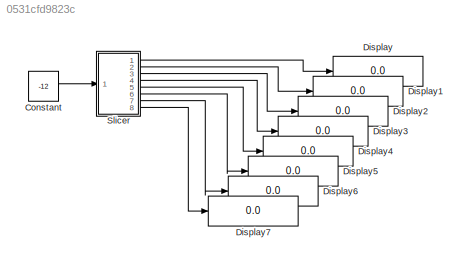
MODEL slx_0531cfd9823c
KIND model
CONFIG AbsTol = auto
CONFIG FixedStep = auto
CONFIG MaxStep = auto
CONFIG MinStep = auto
CONFIG RelTol = 1e-3
CONFIG SampleTimeConstraint = Unconstrained
CONFIG Solver = VariableStepAuto
CONFIG SolverMode = Auto
CONFIG SolverName = VariableStepAuto
CONFIG StartTime = 0.0
CONFIG StopTime = 10.0
BLOCK [Constant] Constant
  OutDataTypeStr = int8
  Value = -12
BLOCK [Display] Display
  Decimation = 1
  Ports = [1]
BLOCK [Display] Display1
  Decimation = 1
  Ports = [1]
BLOCK [Display] Display2
  Decimation = 1
  Ports = [1]
BLOCK [Display] Display3
  Decimation = 1
  Ports = [1]
BLOCK [Display] Display4
  Decimation = 1
  Ports = [1]
BLOCK [Display] Display5
  Decimation = 1
  Ports = [1]
BLOCK [Display] Display6
  Decimation = 1
  Ports = [1]
BLOCK [Display] Display7
  Decimation = 1
  Ports = [1]
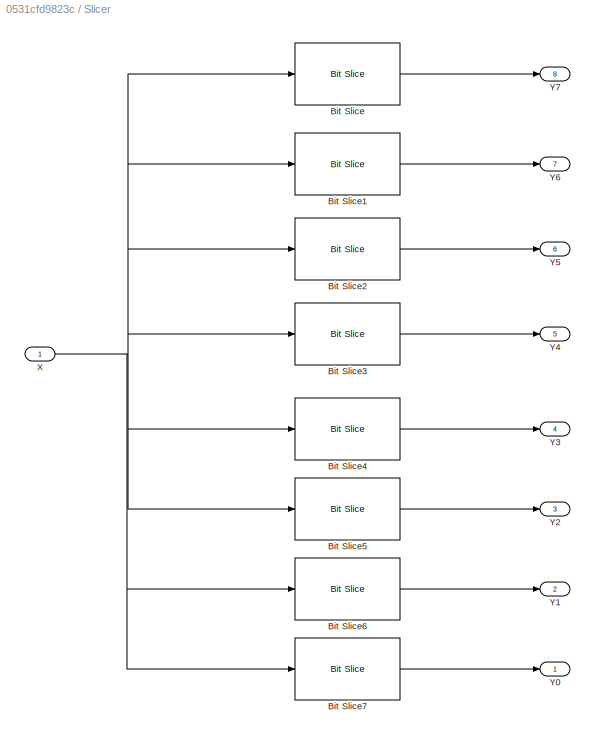
BLOCK [SubSystem] Slicer
  Ports = [1, 8]
  RequestExecContextInheritance = off
  Variant = off
BLOCK [Reference] Slicer/Bit Slice  REF=hdlsllib/HDL Operations/Bit Slice
  Ports = [1, 1]
  SourceBlock = hdlsllib/HDL Operations/Bit Slice
  SourceType = Bit Slice
BLOCK [Reference] Slicer/Bit Slice1  REF=hdlsllib/HDL Operations/Bit Slice
  Ports = [1, 1]
  SourceBlock = hdlsllib/HDL Operations/Bit Slice
  SourceType = Bit Slice
BLOCK [Reference] Slicer/Bit Slice2  REF=hdlsllib/HDL Operations/Bit Slice
  Ports = [1, 1]
  SourceBlock = hdlsllib/HDL Operations/Bit Slice
  SourceType = Bit Slice
BLOCK [Reference] Slicer/Bit Slice3  REF=hdlsllib/HDL Operations/Bit Slice
  Ports = [1, 1]
  SourceBlock = hdlsllib/HDL Operations/Bit Slice
  SourceType = Bit Slice
BLOCK [Reference] Slicer/Bit Slice4  REF=hdlsllib/HDL Operations/Bit Slice
  Ports = [1, 1]
  SourceBlock = hdlsllib/HDL Operations/Bit Slice
  SourceType = Bit Slice
BLOCK [Reference] Slicer/Bit Slice5  REF=hdlsllib/HDL Operations/Bit Slice
  Ports = [1, 1]
  SourceBlock = hdlsllib/HDL Operations/Bit Slice
  SourceType = Bit Slice
BLOCK [Reference] Slicer/Bit Slice6  REF=hdlsllib/HDL Operations/Bit Slice
  Ports = [1, 1]
  SourceBlock = hdlsllib/HDL Operations/Bit Slice
  SourceType = Bit Slice
BLOCK [Reference] Slicer/Bit Slice7  REF=hdlsllib/HDL Operations/Bit Slice
  Ports = [1, 1]
  SourceBlock = hdlsllib/HDL Operations/Bit Slice
  SourceType = Bit Slice
BLOCK [Inport] Slicer/X
  IconDisplay = Port number
  OutDataTypeStr = int8
  SampleTime = 1
BLOCK [Outport] Slicer/Y0 
  IconDisplay = Port number
BLOCK [Outport] Slicer/Y1
  IconDisplay = Port number
  Port = 2
BLOCK [Outport] Slicer/Y2
  IconDisplay = Port number
  Port = 3
BLOCK [Outport] Slicer/Y3
  IconDisplay = Port number
  Port = 4
BLOCK [Outport] Slicer/Y4
  IconDisplay = Port number
  Port = 5
BLOCK [Outport] Slicer/Y5
  IconDisplay = Port number
  Port = 6
BLOCK [Outport] Slicer/Y6
  IconDisplay = Port number
  Port = 7
BLOCK [Outport] Slicer/Y7
  IconDisplay = Port number
  Port = 8
LINE Constant:1 -> Slicer:1
LINE Slicer/Bit Slice1:1 -> Slicer/Y6:1
LINE Slicer/Bit Slice2:1 -> Slicer/Y5:1
LINE Slicer/Bit Slice3:1 -> Slicer/Y4:1
LINE Slicer/Bit Slice4:1 -> Slicer/Y3:1
LINE Slicer/Bit Slice5:1 -> Slicer/Y2:1
LINE Slicer/Bit Slice6:1 -> Slicer/Y1:1
LINE Slicer/Bit Slice7:1 -> Slicer/Y0 :1
LINE Slicer/Bit Slice:1 -> Slicer/Y7:1
NET Slicer/X:1 -> Slicer/Bit Slice1:1, Slicer/Bit Slice2:1, Slicer/Bit Slice3:1, Slicer/Bit Slice4:1, Slicer/Bit Slice5:1, Slicer/Bit Slice6:1, Slicer/Bit Slice7:1, Slicer/Bit Slice:1
LINE Slicer:1 -> Display:1
LINE Slicer:2 -> Display1:1
LINE Slicer:3 -> Display2:1
LINE Slicer:4 -> Display3:1
LINE Slicer:5 -> Display4:1
LINE Slicer:6 -> Display5:1
LINE Slicer:7 -> Display6:1
LINE Slicer:8 -> Display7:1
note: NET lines group one-source signal fan-out (src -> all destinations, sorted); 1:1 wires keep LINE
